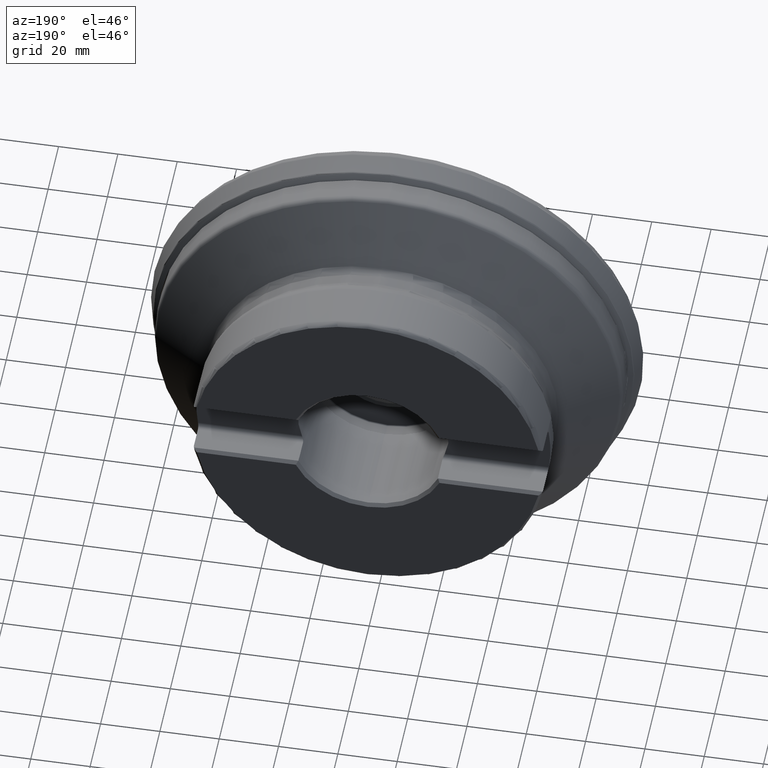
[diagram: clean part render]
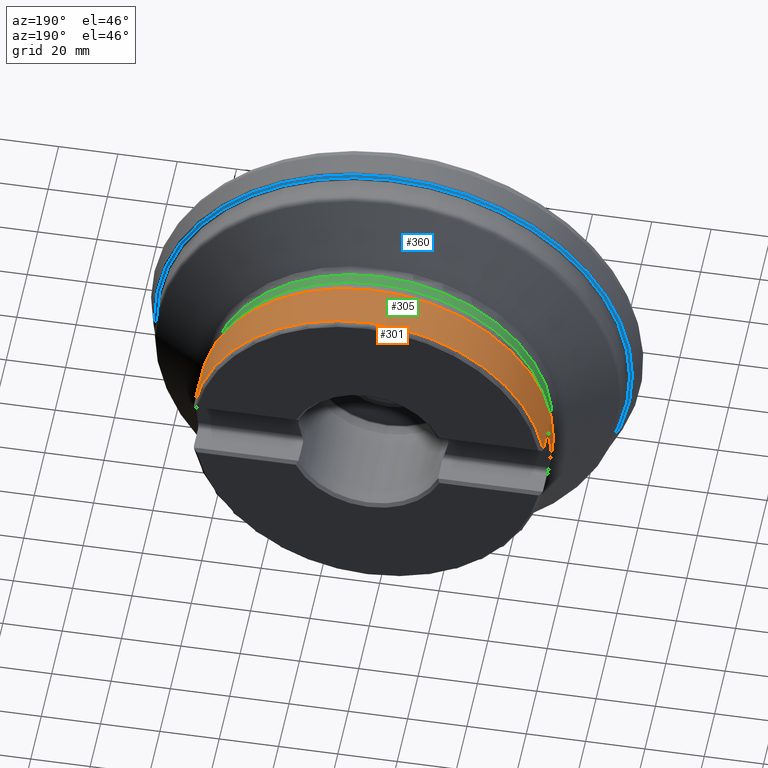
[diagram: same view with three faces highlighted in distinct colors, each labeled with its STEP entity id]
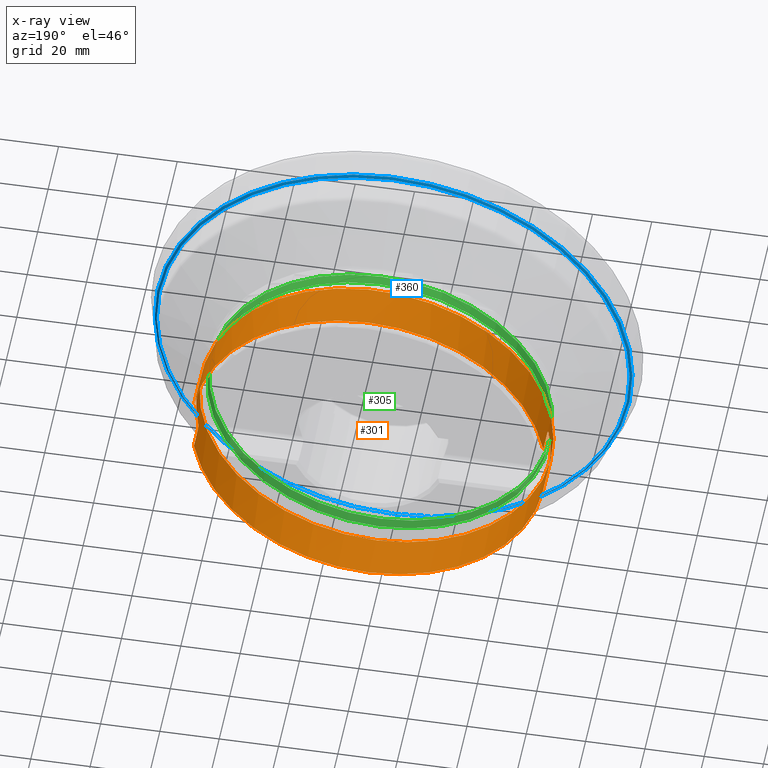
[diagram: x-ray of the same camera — body ghosted, the three highlighted faces saturated]
A machine part, auxiliary view with three faces highlighted in distinct colors.
The next image is the same camera in x-ray (body ghosted, the three faces saturated) — at least one of them is partly hidden behind the body in this view.
Their STEP definitions:

[orange] entity #301 — the highlighted cylindrical surface (bore or boss wall) has radius 59.69 mm, axis along (0, 1, 0).
#203=B_SPLINE_CURVE_WITH_KNOTS('',3,(#1401,#1402,#1403,#1404,#1405,#1406,
#1407,#1408,#1409,#1410,#1411,#1412,#1413,#1414,#1415,#1416),
 .UNSPECIFIED.,.F.,.F.,(4,3,3,3,3,4),(0.,0.211728584845617,0.423369820136601,
0.636381534337956,0.852030717150593,1.),.UNSPECIFIED.);
#204=B_SPLINE_CURVE_WITH_KNOTS('',3,(#1420,#1421,#1422,#1423,#1424,#1425,
#1426,#1427,#1428,#1429,#1430,#1431,#1432,#1433,#1434,#1435),
 .UNSPECIFIED.,.F.,.F.,(4,3,3,3,3,4),(0.,0.217748849405217,0.43552819809802,
0.652730067812248,0.867686410837349,1.),.UNSPECIFIED.);
#205=B_SPLINE_CURVE_WITH_KNOTS('',3,(#1443,#1444,#1445,#1446,#1447,#1448,
#1449,#1450,#1451,#1452,#1453,#1454,#1455,#1456,#1457,#1458),
 .UNSPECIFIED.,.F.,.F.,(4,3,3,3,3,4),(0.,0.21172858484562,0.423369820136606,
0.636381534337959,0.852030717150598,1.),.UNSPECIFIED.);
#206=B_SPLINE_CURVE_WITH_KNOTS('',3,(#1462,#1463,#1464,#1465,#1466,#1467,
#1468,#1469,#1470,#1471,#1472,#1473,#1474,#1475,#1476,#1477),
 .UNSPECIFIED.,.F.,.F.,(4,3,3,3,3,4),(0.,0.217748849405218,0.435528198098022,
0.652730067812247,0.867686410837354,1.),.UNSPECIFIED.);
#252=LINE('',#1394,#276);
#253=LINE('',#1399,#277);
#254=LINE('',#1437,#278);
#255=LINE('',#1441,#279);
#276=VECTOR('',#1147,1.);
#277=VECTOR('',#1150,1.);
#278=VECTOR('',#1153,1.);
#279=VECTOR('',#1156,1.);
#301=ADVANCED_FACE('',(#379,#380),#367,.T.);
#367=CYLINDRICAL_SURFACE('',#1044,59.69);
#379=FACE_BOUND('',#463,.T.);
#380=FACE_BOUND('',#464,.T.);
#463=EDGE_LOOP('',(#571));
#464=EDGE_LOOP('',(#572,#573,#574,#575,#576,#577,#578,#579,#580,#581,#582,
#583));
#571=ORIENTED_EDGE('',*,*,#873,.T.);
#572=ORIENTED_EDGE('',*,*,#874,.F.);
#573=ORIENTED_EDGE('',*,*,#875,.T.);
#574=ORIENTED_EDGE('',*,*,#876,.F.);
#575=ORIENTED_EDGE('',*,*,#877,.T.);
#576=ORIENTED_EDGE('',*,*,#878,.F.);
#577=ORIENTED_EDGE('',*,*,#879,.T.);
#578=ORIENTED_EDGE('',*,*,#880,.F.);
#579=ORIENTED_EDGE('',*,*,#881,.T.);
#580=ORIENTED_EDGE('',*,*,#882,.F.);
#581=ORIENTED_EDGE('',*,*,#883,.T.);
#582=ORIENTED_EDGE('',*,*,#884,.F.);
#583=ORIENTED_EDGE('',*,*,#885,.T.);
#787=VERTEX_POINT('',#1393);
#788=VERTEX_POINT('',#1395);
#789=VERTEX_POINT('',#1396);
#790=VERTEX_POINT('',#1398);
#791=VERTEX_POINT('',#1400);
#792=VERTEX_POINT('',#1417);
#793=VERTEX_POINT('',#1419);
#794=VERTEX_POINT('',#1436);
#795=VERTEX_POINT('',#1438);
#796=VERTEX_POINT('',#1440);
#797=VERTEX_POINT('',#1442);
#798=VERTEX_POINT('',#1459);
#799=VERTEX_POINT('',#1461);
#873=EDGE_CURVE('',#787,#787,#981,.T.);
#874=EDGE_CURVE('',#788,#789,#252,.T.);
#875=EDGE_CURVE('',#788,#790,#982,.T.);
#876=EDGE_CURVE('',#791,#790,#253,.T.);
#877=EDGE_CURVE('',#791,#792,#203,.T.);
#878=EDGE_CURVE('',#793,#792,#983,.T.);
#879=EDGE_CURVE('',#793,#794,#204,.T.);
#880=EDGE_CURVE('',#795,#794,#254,.T.);
#881=EDGE_CURVE('',#795,#796,#984,.T.);
#882=EDGE_CURVE('',#797,#796,#255,.T.);
#883=EDGE_CURVE('',#797,#798,#205,.T.);
#884=EDGE_CURVE('',#799,#798,#985,.T.);
#885=EDGE_CURVE('',#799,#789,#206,.T.);
#981=CIRCLE('',#1039,59.69);
#982=CIRCLE('',#1040,59.69);
#983=CIRCLE('',#1041,59.69);
#984=CIRCLE('',#1042,59.69);
#985=CIRCLE('',#1043,59.69);
#1039=AXIS2_PLACEMENT_3D('',#1392,#1145,#1146);
#1040=AXIS2_PLACEMENT_3D('',#1397,#1148,#1149);
#1041=AXIS2_PLACEMENT_3D('',#1418,#1151,#1152);
#1042=AXIS2_PLACEMENT_3D('',#1439,#1154,#1155);
#1043=AXIS2_PLACEMENT_3D('',#1460,#1157,#1158);
#1044=AXIS2_PLACEMENT_3D('',#1478,#1159,#1160);
#1145=DIRECTION('',(0.,1.,0.));
#1146=DIRECTION('',(0.,0.,-1.));
#1147=DIRECTION('',(0.,-1.,0.));
#1148=DIRECTION('',(0.,-1.,0.));
#1149=DIRECTION('',(0.,0.,-1.));
#1150=DIRECTION('',(0.,1.,0.));
#1151=DIRECTION('',(2.80161754078923E-17,1.,4.51372080642067E-19));
#1152=DIRECTION('',(-1.,0.,0.));
#1153=DIRECTION('',(0.,-1.,0.));
#1154=DIRECTION('',(0.,-1.,0.));
#1155=DIRECTION('',(0.,0.,-1.));
#1156=DIRECTION('',(0.,1.,0.));
#1157=DIRECTION('',(2.80161754078923E-17,1.,4.51372080642067E-19));
#1158=DIRECTION('',(-1.,0.,0.));
#1159=DIRECTION('',(0.,1.,0.));
#1160=DIRECTION('',(0.,0.,1.));
#1392=CARTESIAN_POINT('',(0.,46.1148685134339,0.));
#1393=CARTESIAN_POINT('',(0.,46.1148685134339,-59.69));
#1394=CARTESIAN_POINT('',(-58.8924483698886,63.2,-9.72499999999999));
#1395=CARTESIAN_POINT('',(-58.8924483698887,61.2,-9.72499999999999));
#1396=CARTESIAN_POINT('',(-58.8924483698886,53.6,-9.725));
#1397=CARTESIAN_POINT('',(0.,61.2,0.));
#1398=CARTESIAN_POINT('',(58.8924483698886,61.2,-9.725));
#1399=CARTESIAN_POINT('',(58.8924483698886,63.2,-9.725));
#1400=CARTESIAN_POINT('',(58.8924483698886,53.6,-9.72500000000001));
#1401=CARTESIAN_POINT('',(58.8924483698886,53.6,-9.72500000000001));
#1402=CARTESIAN_POINT('',(58.8924483698886,53.4226194710246,-9.72500000000001));
#1403=CARTESIAN_POINT('',(58.8974826755254,53.2427949223123,-9.69464268067892));
#1404=CARTESIAN_POINT('',(58.9069821241855,53.0754580399394,-9.63657392546173));
#1405=CARTESIAN_POINT('',(58.916479381387,52.9081597610547,-9.57851856631405));
#1406=CARTESIAN_POINT('',(58.9306819701946,52.7487535662842,-9.49120892930653));
#1407=CARTESIAN_POINT('',(58.9480603276291,52.610099591312,-9.3820191648815));
#1408=CARTESIAN_POINT('',(58.9655520744559,52.4705409341787,-9.27211696482615));
#1409=CARTESIAN_POINT('',(58.9867142621682,52.3481922148847,-9.1370882869513));
#1410=CARTESIAN_POINT('',(59.0094220164757,52.2526973807665,-8.98800385410882));
#1411=CARTESIAN_POINT('',(59.0324067431852,52.1560377712491,-8.83710099955395));
#1412=CARTESIAN_POINT('',(59.0575844348495,52.0842462640182,-8.66768509392101));
#1413=CARTESIAN_POINT('',(59.0826154152535,52.0430287613739,-8.49356554653313));
#1414=CARTESIAN_POINT('',(59.0999178985638,52.0145374621884,-8.37320667468447));
#1415=CARTESIAN_POINT('',(59.1174272020614,52.,-8.24872707737751));
#1416=CARTESIAN_POINT('',(59.1344271554228,52.,-8.125));
#1417=CARTESIAN_POINT('',(59.1344271554228,52.,-8.125));
#1418=CARTESIAN_POINT('',(0.,52.,0.));
#1419=CARTESIAN_POINT('',(59.1344271554228,52.,8.12499999999999));
#1420=CARTESIAN_POINT('',(59.1344271554228,52.,8.12499999999999));
#1421=CARTESIAN_POINT('',(59.1095954867774,52.,8.3057269539267));
#1422=CARTESIAN_POINT('',(59.0835479044633,52.0314693734313,8.48882242964362));
#1423=CARTESIAN_POINT('',(59.0585727798906,52.0917986582821,8.65916169166298));
#1424=CARTESIAN_POINT('',(59.0335959471601,52.1521320693161,8.82951260392815));
#1425=CARTESIAN_POINT('',(59.0090104570616,52.2430145176287,8.99183286679815));
#1426=CARTESIAN_POINT('',(58.9872256540578,52.3570757727885,9.13254124749841));
#1427=CARTESIAN_POINT('',(58.9655013690816,52.4708201665941,9.27285874131959));
#1428=CARTESIAN_POINT('',(58.9459762911427,52.6108273583285,9.39559212843244));
#1429=CARTESIAN_POINT('',(58.9307493779214,52.765508872829,9.4901463506426));
#1430=CARTESIAN_POINT('',(58.9156789257167,52.918600989225,9.58372900037991));
#1431=CARTESIAN_POINT('',(58.9044184259248,53.0903762563818,9.65230728982318));
#1432=CARTESIAN_POINT('',(58.8982451482139,53.2663760102513,9.68983067245762));
#1433=CARTESIAN_POINT('',(58.8944107578387,53.3756942353295,9.71313746407716));
#1434=CARTESIAN_POINT('',(58.8924483698886,53.4881591156178,9.72499999999999));
#1435=CARTESIAN_POINT('',(58.8924483698886,53.6,9.72499999999999));
#1436=CARTESIAN_POINT('',(58.8924483698886,53.6,9.72499999999999));
#1437=CARTESIAN_POINT('',(58.8924483698886,63.2,9.72499999999999));
#1438=CARTESIAN_POINT('',(58.8924483698886,61.2,9.725));
#1439=CARTESIAN_POINT('',(0.,61.2,0.));
#1440=CARTESIAN_POINT('',(-58.8924483698889,61.2,9.725));
#1441=CARTESIAN_POINT('',(-58.8924483698886,63.2,9.725));
#1442=CARTESIAN_POINT('',(-58.8924483698886,53.6,9.725));
#1443=CARTESIAN_POINT('',(-58.8924483698886,53.6,9.725));
#1444=CARTESIAN_POINT('',(-58.8924483698886,53.4226194710246,9.725));
#1445=CARTESIAN_POINT('',(-58.8974826755254,53.2427949223123,9.69464268067891));
#1446=CARTESIAN_POINT('',(-58.9069821241855,53.0754580399394,9.63657392546173));
#1447=CARTESIAN_POINT('',(-58.916479381387,52.9081597610547,9.57851856631405));
#1448=CARTESIAN_POINT('',(-58.9306819701946,52.7487535662842,9.49120892930652));
#1449=CARTESIAN_POINT('',(-58.9480603276291,52.610099591312,9.38201916488149));
#1450=CARTESIAN_POINT('',(-58.9655520744559,52.4705409341787,9.27211696482614));
#1451=CARTESIAN_POINT('',(-58.9867142621682,52.3481922148847,9.13708828695128));
#1452=CARTESIAN_POINT('',(-59.0094220164757,52.2526973807665,8.98800385410881));
#1453=CARTESIAN_POINT('',(-59.0324067431852,52.1560377712491,8.83710099955394));
#1454=CARTESIAN_POINT('',(-59.0575844348495,52.0842462640182,8.66768509392099));
#1455=CARTESIAN_POINT('',(-59.0826154152535,52.0430287613739,8.49356554653311));
#1456=CARTESIAN_POINT('',(-59.0999178985638,52.0145374621884,8.37320667468446));
#1457=CARTESIAN_POINT('',(-59.1174272020614,52.,8.2487270773775));
#1458=CARTESIAN_POINT('',(-59.1344271554228,52.,8.125));
#1459=CARTESIAN_POINT('',(-59.1344271554228,52.,8.125));
#1460=CARTESIAN_POINT('',(0.,52.,0.));
#1461=CARTESIAN_POINT('',(-59.1344271554228,52.,-8.125));
#1462=CARTESIAN_POINT('',(-59.1344271554228,52.,-8.125));
#1463=CARTESIAN_POINT('',(-59.1095954867774,52.,-8.3057269539267));
#1464=CARTESIAN_POINT('',(-59.0835479044633,52.0314693734313,-8.48882242964362));
#1465=CARTESIAN_POINT('',(-59.0585727798906,52.0917986582821,-8.65916169166299));
#1466=CARTESIAN_POINT('',(-59.0335959471601,52.1521320693161,-8.82951260392815));
#1467=CARTESIAN_POINT('',(-59.0090104570616,52.2430145176287,-8.99183286679816));
#1468=CARTESIAN_POINT('',(-58.9872256540578,52.3570757727885,-9.13254124749841));
#1469=CARTESIAN_POINT('',(-58.9655013690816,52.4708201665941,-9.27285874131959));
#1470=CARTESIAN_POINT('',(-58.9459762911427,52.6108273583285,-9.39559212843244));
#1471=CARTESIAN_POINT('',(-58.9307493779214,52.765508872829,-9.4901463506426));
#1472=CARTESIAN_POINT('',(-58.9156789257167,52.918600989225,-9.58372900037991));
#1473=CARTESIAN_POINT('',(-58.9044184259248,53.0903762563818,-9.65230728982319));
#1474=CARTESIAN_POINT('',(-58.8982451482139,53.2663760102513,-9.68983067245762));
#1475=CARTESIAN_POINT('',(-58.8944107578387,53.3756942353295,-9.71313746407716));
#1476=CARTESIAN_POINT('',(-58.8924483698886,53.4881591156178,-9.725));
#1477=CARTESIAN_POINT('',(-58.8924483698886,53.6,-9.725));
#1478=CARTESIAN_POINT('',(0.,63.2,0.));

[blue] entity #360 — the highlighted face is a SurfaceOfRevolution surface.
#120=SURFACE_OF_REVOLUTION('',#248,#141);
#141=AXIS1_PLACEMENT('',#1944,#1372);
#248=B_SPLINE_CURVE_WITH_KNOTS('',3,(#1939,#1940,#1941,#1942,#1943),
 .UNSPECIFIED.,.F.,.F.,(4,1,4),(0.,0.499999999926319,1.),.UNSPECIFIED.);
#360=ADVANCED_FACE('',(#451,#452),#120,.T.);
#451=FACE_BOUND('',#558,.T.);
#452=FACE_BOUND('',#559,.T.);
#558=EDGE_LOOP('',(#774));
#559=EDGE_LOOP('',(#775));
#774=ORIENTED_EDGE('',*,*,#975,.F.);
#775=ORIENTED_EDGE('',*,*,#974,.T.);
#866=VERTEX_POINT('',#1931);
#867=VERTEX_POINT('',#1938);
#974=EDGE_CURVE('',#866,#866,#1030,.T.);
#975=EDGE_CURVE('',#867,#867,#1031,.T.);
#1030=CIRCLE('',#1130,80.527605099093);
#1031=CIRCLE('',#1131,79.7127532845451);
#1130=AXIS2_PLACEMENT_3D('',#1930,#1367,#1368);
#1131=AXIS2_PLACEMENT_3D('',#1937,#1370,#1371);
#1367=DIRECTION('',(0.,1.,0.));
#1368=DIRECTION('',(0.,0.,1.));
#1370=DIRECTION('',(0.,1.,0.));
#1371=DIRECTION('',(0.,0.,1.));
#1372=DIRECTION('',(0.,1.,0.));
#1930=CARTESIAN_POINT('',(0.,13.4950349167982,0.));
#1931=CARTESIAN_POINT('',(0.,13.4950349167982,80.527605099093));
#1937=CARTESIAN_POINT('',(0.,14.1127291896378,0.));
#1938=CARTESIAN_POINT('',(0.,14.1127291896378,79.7127532845451));
#1939=CARTESIAN_POINT('',(79.4200471868612,13.4950349167982,13.3098192261281));
#1940=CARTESIAN_POINT('',(79.2816124627546,13.5984367636203,13.3356031122552));
#1941=CARTESIAN_POINT('',(79.0033723286265,13.8059248818043,13.376160741993));
#1942=CARTESIAN_POINT('',(78.7205722924985,14.0104657221885,13.3935100060226));
#1943=CARTESIAN_POINT('',(78.5789623728119,14.1127291896378,13.3966304948284));
#1944=CARTESIAN_POINT('',(0.,0.,0.));

[green] entity #305 — the highlighted cylindrical surface (bore or boss wall) has radius 57.89 mm, axis along (0, 1, 0).
#305=ADVANCED_FACE('',(#383,#384),#368,.T.);
#368=CYLINDRICAL_SURFACE('',#1054,57.89);
#383=FACE_BOUND('',#469,.T.);
#384=FACE_BOUND('',#470,.T.);
#469=EDGE_LOOP('',(#598));
#470=EDGE_LOOP('',(#599));
#598=ORIENTED_EDGE('',*,*,#898,.T.);
#599=ORIENTED_EDGE('',*,*,#899,.T.);
#810=VERTEX_POINT('',#1556);
#811=VERTEX_POINT('',#1558);
#898=EDGE_CURVE('',#810,#810,#990,.T.);
#899=EDGE_CURVE('',#811,#811,#991,.T.);
#990=CIRCLE('',#1052,57.89);
#991=CIRCLE('',#1053,57.89);
#1052=AXIS2_PLACEMENT_3D('',#1555,#1175,#1176);
#1053=AXIS2_PLACEMENT_3D('',#1557,#1177,#1178);
#1054=AXIS2_PLACEMENT_3D('',#1559,#1179,#1180);
#1175=DIRECTION('',(0.,1.,0.));
#1176=DIRECTION('',(0.,0.,1.));
#1177=DIRECTION('',(0.,-1.,0.));
#1178=DIRECTION('',(0.,0.,1.));
#1179=DIRECTION('',(0.,1.,0.));
#1180=DIRECTION('',(0.,0.,1.));
#1555=CARTESIAN_POINT('',(0.,37.8252867876718,0.));
#1556=CARTESIAN_POINT('',(0.,37.8252867876718,57.89));
#1557=CARTESIAN_POINT('',(0.,41.4287187078898,0.));
#1558=CARTESIAN_POINT('',(0.,41.4287187078898,57.89));
#1559=CARTESIAN_POINT('',(0.,63.2,0.));